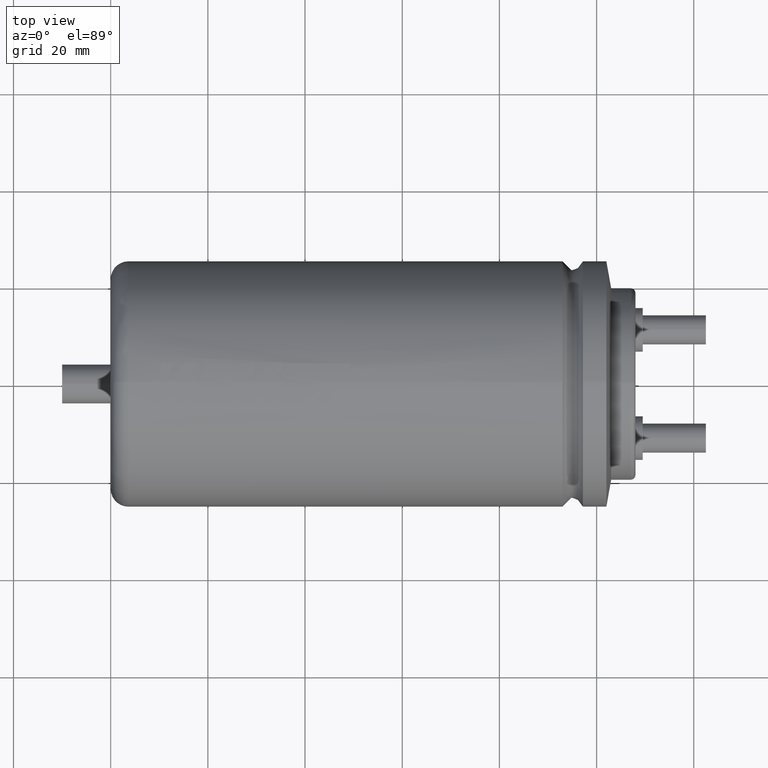
[diagram: clean part render]
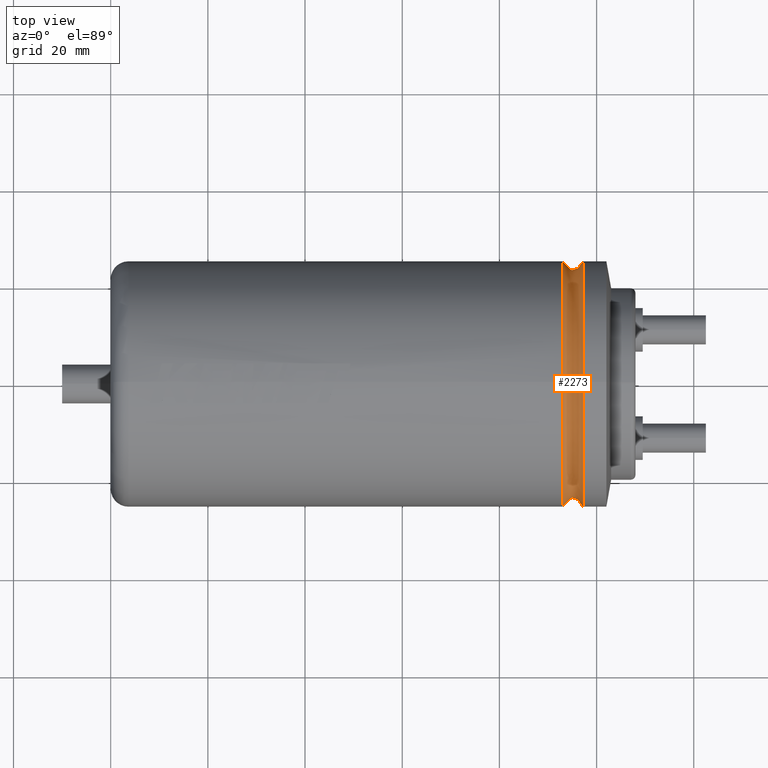
[diagram: same view with one face highlighted and labeled with its STEP entity id]
A machine part, top view. The second image highlights one B-rep face of the part: STEP entity #2273.
In plain terms, the highlighted face is a freeform B-spline surface patch.
Its self-contained STEP definition (entity closure, byte-faithful):
#49 = B_SPLINE_CURVE_WITH_KNOTS ( 'NONE', 2,
 ( #2690, #1147, #3621 ),
 .UNSPECIFIED., .F., .F.,
 ( 3, 3 ),
 ( 0.0000000000000000000, 1.000000000000000000 ),
 .UNSPECIFIED. ) ;
#60 = DIRECTION ( 'NONE',  ( 1.000000000000000000, -0.0000000000000000000, -0.0000000000000000000 ) ) ;
#65 = EDGE_CURVE ( 'NONE', #2632, #2107, #49, .T. ) ;
#202 = DIRECTION ( 'NONE',  ( 0.0000000000000000000, 0.0000000000000000000, -1.000000000000000000 ) ) ;
#206 = AXIS2_PLACEMENT_3D ( 'NONE', #2229, #60, #2220 ) ;
#300 = DIRECTION ( 'NONE',  ( 1.000000000000000000, -0.0000000000000000000, -0.0000000000000000000 ) ) ;
#518 = ORIENTED_EDGE ( 'NONE', *, *, #3460, .T. ) ;
#670 = DIRECTION ( 'NONE',  ( 0.0000000000000000000, 0.0000000000000000000, -1.000000000000000000 ) ) ;
#722 = DIRECTION ( 'NONE',  ( 1.000000000000000000, -0.0000000000000000000, -0.0000000000000000000 ) ) ;
#728 = CIRCLE ( 'NONE', #3674, 25.25000000000000000 ) ;
#747 = VERTEX_POINT ( 'NONE', #2518 ) ;
#782 = CARTESIAN_POINT ( 'NONE',  ( 92.99663999999999900, -25.24999999999999600, 50.49999999999999300 ) ) ;
#805 = CARTESIAN_POINT ( 'NONE',  ( 95.09268999999999000, -21.55339999999999600, 2.639530232074256200E-015 ) ) ;
#810 = CARTESIAN_POINT ( 'NONE',  ( 97.18873999999999600, 25.25000000000000000, 0.0000000000000000000 ) ) ;
#813 = ORIENTED_EDGE ( 'NONE', *, *, #65, .F. ) ;
#825 = ORIENTED_EDGE ( 'NONE', *, *, #907, .F. ) ;
#859 = VERTEX_POINT ( 'NONE', #3205 ) ;
#907 = EDGE_CURVE ( 'NONE', #859, #3380, #1141, .T. ) ;
#1023 = ORIENTED_EDGE ( 'NONE', *, *, #1224, .T. ) ;
#1141 = CIRCLE ( 'NONE', #2100, 25.25000000000000000 ) ;
#1147 = CARTESIAN_POINT ( 'NONE',  ( 95.09268999999999000, 21.55339999999999600, 0.0000000000000000000 ) ) ;
#1224 = EDGE_CURVE ( 'NONE', #3762, #3380, #3012, .T. ) ;
#1241 = EDGE_CURVE ( 'NONE', #747, #3762, #728, .T. ) ;
#1325 = ORIENTED_EDGE ( 'NONE', *, *, #1241, .T. ) ;
#1422 = CARTESIAN_POINT ( 'NONE',  ( 92.99663999999998500, 25.25000000000000000, 0.0000000000000000000 ) ) ;
#1462 = CARTESIAN_POINT ( 'NONE',  ( 97.18873999999999600, 0.0000000000000000000, 0.0000000000000000000 ) ) ;
#1509 = CARTESIAN_POINT ( 'NONE',  ( 97.18873999999999600, -25.25000000000000000, 3.092233167847066800E-015 ) ) ;
#1705 = CARTESIAN_POINT ( 'NONE',  ( 97.18874000000001000, -25.24999999999999600, 50.49999999999999300 ) ) ;
#1747 = CARTESIAN_POINT ( 'NONE',  ( 92.99663999999998500, 25.25000000000000000, 0.0000000000000000000 ) ) ;
#1761 = CARTESIAN_POINT ( 'NONE',  ( 92.99663999999999900, 25.25000000000000400, 50.49999999999999300 ) ) ;
#1869 = CARTESIAN_POINT ( 'NONE',  ( 92.99663999999998500, 0.0000000000000000000, 0.0000000000000000000 ) ) ;
#2040 = EDGE_CURVE ( 'NONE', #2107, #859, #2791, .T. ) ;
#2088 = CARTESIAN_POINT ( 'NONE',  ( 95.09268999999999000, -21.55339999999999600, 2.639530232074256200E-015 ) ) ;
#2100 = AXIS2_PLACEMENT_3D ( 'NONE', #1462, #3895, #202 ) ;
#2107 = VERTEX_POINT ( 'NONE', #3151 ) ;
#2146 = EDGE_LOOP ( 'NONE', ( #1325, #1023, #825, #2681, #813, #518 ) ) ;
#2180 = CIRCLE ( 'NONE', #206, 25.25000000000000000 ) ;
#2220 = DIRECTION ( 'NONE',  ( 0.0000000000000000000, 0.0000000000000000000, -1.000000000000000000 ) ) ;
#2229 = CARTESIAN_POINT ( 'NONE',  ( 92.99663999999998500, 0.0000000000000000000, 0.0000000000000000000 ) ) ;
#2273 = ADVANCED_FACE ( 'NONE', ( #2649 ), #3951, .F. ) ;
#2340 = CARTESIAN_POINT ( 'NONE',  ( 92.99663999999998500, -25.25000000000000000, 3.092233167847066800E-015 ) ) ;
#2518 = CARTESIAN_POINT ( 'NONE',  ( 92.99663999999998500, 0.0000000000000000000, 25.25000000000000000 ) ) ;
#2612 = CARTESIAN_POINT ( 'NONE',  ( 92.99663999999998500, -25.25000000000000000, 3.092233167847066800E-015 ) ) ;
#2632 = VERTEX_POINT ( 'NONE', #1422 ) ;
#2649 = FACE_OUTER_BOUND ( 'NONE', #2146, .T. ) ;
#2669 = CARTESIAN_POINT ( 'NONE',  ( 92.99663999999998500, -25.25000000000000000, 3.092233167847066800E-015 ) ) ;
#2681 = ORIENTED_EDGE ( 'NONE', *, *, #2040, .F. ) ;
#2690 = CARTESIAN_POINT ( 'NONE',  ( 92.99663999999998500, 25.25000000000000000, 0.0000000000000000000 ) ) ;
#2776 = CARTESIAN_POINT ( 'NONE',  ( 97.18873999999999600, 0.0000000000000000000, 0.0000000000000000000 ) ) ;
#2791 = CIRCLE ( 'NONE', #3440, 25.25000000000000000 ) ;
#2968 = CARTESIAN_POINT ( 'NONE',  ( 97.18873999999999600, -25.25000000000000000, 3.092233167847066800E-015 ) ) ;
#3012 = B_SPLINE_CURVE_WITH_KNOTS ( 'NONE', 2,
 ( #2669, #805, #3630 ),
 .UNSPECIFIED., .F., .F.,
 ( 3, 3 ),
 ( 0.0000000000000000000, 1.000000000000000000 ),
 .UNSPECIFIED. ) ;
#3151 = CARTESIAN_POINT ( 'NONE',  ( 97.18873999999999600, 25.25000000000000000, 0.0000000000000000000 ) ) ;
#3163 = DIRECTION ( 'NONE',  ( 0.0000000000000000000, 0.0000000000000000000, -1.000000000000000000 ) ) ;
#3205 = CARTESIAN_POINT ( 'NONE',  ( 97.18873999999999600, 0.0000000000000000000, 25.25000000000000000 ) ) ;
#3260 = CARTESIAN_POINT ( 'NONE',  ( 95.09268999999999000, 21.55339999999999600, 0.0000000000000000000 ) ) ;
#3380 = VERTEX_POINT ( 'NONE', #1509 ) ;
#3440 = AXIS2_PLACEMENT_3D ( 'NONE', #2776, #300, #3163 ) ;
#3460 = EDGE_CURVE ( 'NONE', #2632, #747, #2180, .T. ) ;
#3556 = CARTESIAN_POINT ( 'NONE',  ( 95.09268999999999000, 21.55339999999999600, 43.10679999999999300 ) ) ;
#3621 = CARTESIAN_POINT ( 'NONE',  ( 97.18873999999999600, 25.25000000000000000, 0.0000000000000000000 ) ) ;
#3630 = CARTESIAN_POINT ( 'NONE',  ( 97.18873999999999600, -25.25000000000000000, 3.092233167847066800E-015 ) ) ;
#3674 = AXIS2_PLACEMENT_3D ( 'NONE', #1869, #722, #670 ) ;
#3762 = VERTEX_POINT ( 'NONE', #2612 ) ;
#3895 = DIRECTION ( 'NONE',  ( 1.000000000000000000, -0.0000000000000000000, -0.0000000000000000000 ) ) ;
#3930 = CARTESIAN_POINT ( 'NONE',  ( 97.18874000000001000, 25.25000000000000400, 50.49999999999999300 ) ) ;
#3950 = CARTESIAN_POINT ( 'NONE',  ( 95.09268999999999000, -21.55339999999998900, 43.10679999999999300 ) ) ;
#3951 =( BOUNDED_SURFACE ( )  B_SPLINE_SURFACE ( 2, 3, ( 
 ( #1747, #1761, #782, #2340 ),
 ( #3260, #3556, #3950, #2088 ),
 ( #810, #3930, #1705, #2968 ) ),
 .UNSPECIFIED., .F., .F., .T. ) 
 B_SPLINE_SURFACE_WITH_KNOTS ( ( 3, 3 ),
 ( 4, 4 ),
 ( 0.0000000000000000000, 1.000000000000000000 ),
 ( 0.0000000000000000000, 1.000000000000000000 ),
 .UNSPECIFIED. ) 
 GEOMETRIC_REPRESENTATION_ITEM ( )  RATIONAL_B_SPLINE_SURFACE ( (
 ( 1.000000000000000000, 0.3333333333333334300, 0.3333333333333334300, 1.000000000000000000),
 ( 1.000000000000000000, 0.3333333333333334300, 0.3333333333333334300, 1.000000000000000000),
 ( 1.000000000000000000, 0.3333333333333334300, 0.3333333333333334300, 1.000000000000000000) ) ) 
 REPRESENTATION_ITEM ( '' )  SURFACE ( )  );